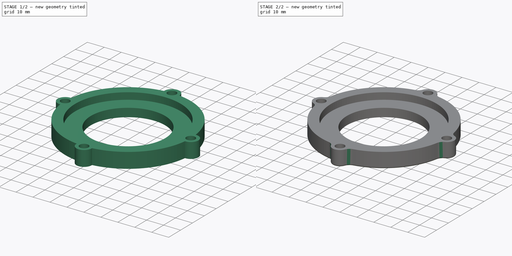
[diagram: build sequence overview — one tinted view per stage of 2, left to right]
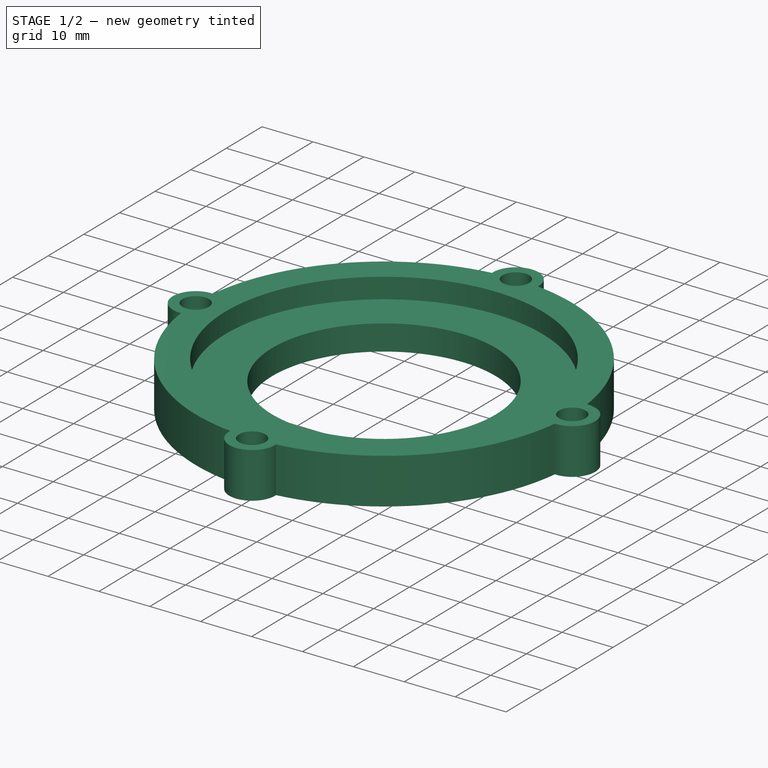
[diagram: stage 1 of 2 — iso view after this stage's code; geometry added in this stage tinted green]
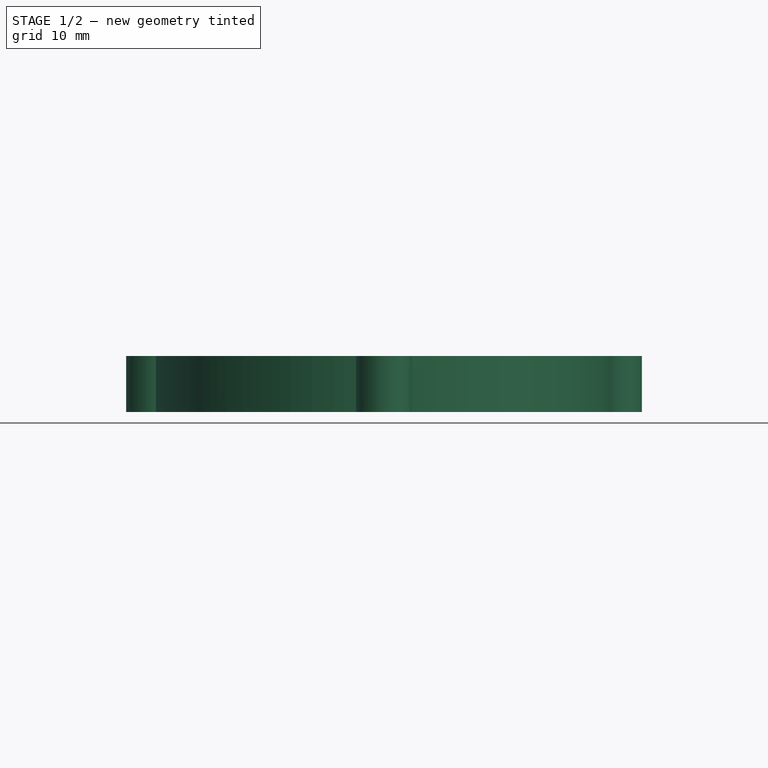
[diagram: stage 1 of 2 — front view after this stage's code; geometry added in this stage tinted green]
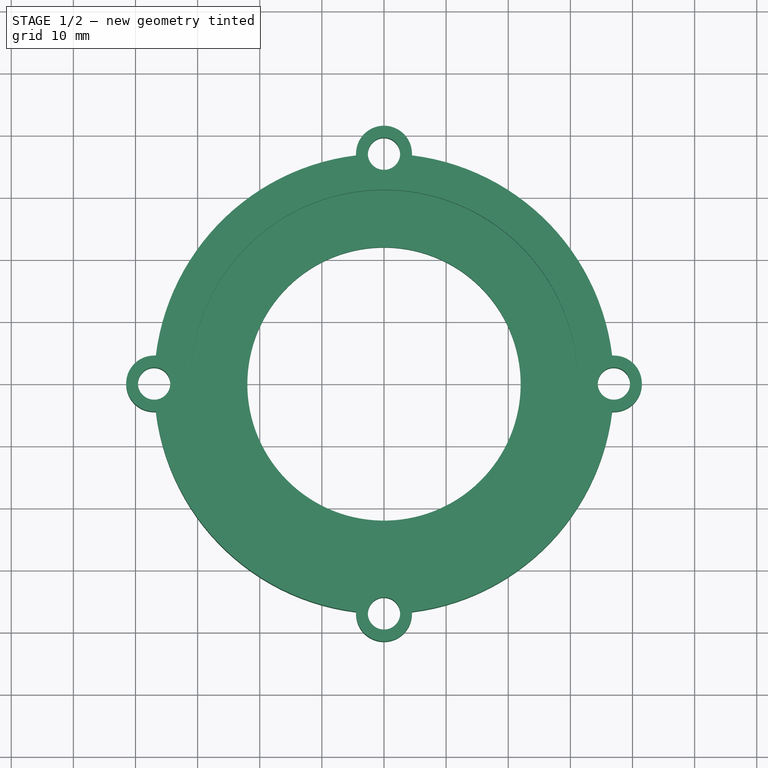
[diagram: stage 1 of 2 — top view after this stage's code; geometry added in this stage tinted green]
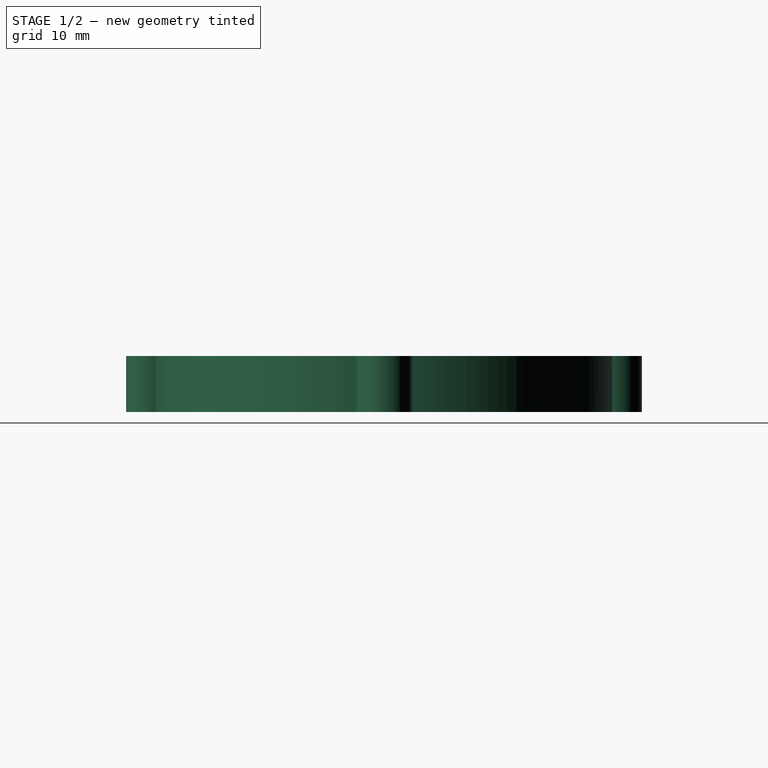
[diagram: stage 1 of 2 — right view after this stage's code; geometry added in this stage tinted green]
FCSTD DOCUMENT  (FreeCAD 0.16R4928 (Git))
Label: ball_bearing_housing
License: All rights reserved
LicenseURL: http://en.wikipedia.org/wiki/All_rights_reserved
objects: Sketcher::SketchObject×2, PartDesign::Fillet×2, PartDesign::Pad×1, PartDesign::Pocket×1
note: 8 computed .brp shape members not serialized (recipe doc carries the construction recipe); baked Part::Feature solids carry a one-line shape summary decoded from their .brp

FEATURE [Sketcher::SketchObject] Sketch
  sketch-geometry (21):
    g0: ArcOfCircle CenterX=0 CenterY=0 CenterZ=0 NormalX=0 NormalY=0 NormalZ=1 Radius=37 StartAngle=1.69272 EndAngle=3.01967
    g1: Circle CenterX=0 CenterY=0 CenterZ=0 NormalX=0 NormalY=0 NormalZ=1 Radius=22
    g2: Circle CenterX=0 CenterY=37 CenterZ=0 NormalX=0 NormalY=0 NormalZ=1 Radius=2.6
    g3: Circle CenterX=0 CenterY=-37 CenterZ=0 NormalX=0 NormalY=0 NormalZ=1 Radius=2.6
    g4: Circle CenterX=-37 CenterY=0 CenterZ=0 NormalX=0 NormalY=0 NormalZ=1 Radius=2.6
    g5: Circle CenterX=37 CenterY=0 CenterZ=0 NormalX=0 NormalY=0 NormalZ=1 Radius=2.6
    g6: ArcOfCircle CenterX=0 CenterY=37 CenterZ=0 NormalX=0 NormalY=0 NormalZ=1 Radius=4.5 StartAngle=6.28319 EndAngle=9.42477
    g7: ArcOfCircle CenterX=-37 CenterY=0 CenterZ=0 NormalX=0 NormalY=0 NormalZ=1 Radius=4.5 StartAngle=1.5708 EndAngle=4.71238
    g8: ArcOfCircle CenterX=0 CenterY=-37 CenterZ=0 NormalX=0 NormalY=0 NormalZ=1 Radius=4.5 StartAngle=3.14159 EndAngle=6.28319
    g9: ArcOfCircle CenterX=37 CenterY=0 CenterZ=0 NormalX=0 NormalY=0 NormalZ=1 Radius=4.5 StartAngle=4.71239 EndAngle=7.85398
    g10: LineSegment StartX=-4.5 StartY=37 StartZ=0 EndX=-4.5 EndY=36.7253 EndZ=0
    g11: LineSegment StartX=4.5 StartY=37 StartZ=0 EndX=4.5 EndY=36.7253 EndZ=0
    g12: LineSegment StartX=-37 StartY=4.5 StartZ=0 EndX=-36.7253 EndY=4.5 EndZ=0
    g13: LineSegment StartX=-37 StartY=-4.5 StartZ=0 EndX=-36.7253 EndY=-4.5 EndZ=0
    g14: ArcOfCircle CenterX=0 CenterY=0 CenterZ=0 NormalX=0 NormalY=0 NormalZ=1 Radius=37 StartAngle=3.26352 EndAngle=4.59047
    g15: LineSegment StartX=-4.5 StartY=-36.7253 StartZ=0 EndX=-4.5 EndY=-37 EndZ=0
    g16: LineSegment StartX=4.5 StartY=-36.7253 StartZ=0 EndX=4.5 EndY=-37 EndZ=0
    g17: ArcOfCircle CenterX=0 CenterY=0 CenterZ=0 NormalX=0 NormalY=0 NormalZ=1 Radius=37 StartAngle=4.83431 EndAngle=6.16126
    g18: LineSegment StartX=36.7253 StartY=4.5 StartZ=0 EndX=37 EndY=4.5 EndZ=0
    g19: LineSegment StartX=36.7253 StartY=-4.5 StartZ=0 EndX=37 EndY=-4.5 EndZ=0
    g20: ArcOfCircle CenterX=0 CenterY=0 CenterZ=0 NormalX=0 NormalY=0 NormalZ=1 Radius=37 StartAngle=0.121923 EndAngle=1.44887
  constraints (68):
    c: Coincident(g0,g-1)
    c: Radius(g0) = 37
    c: Coincident(g1,g-1)
    c: Radius(g1) = 22
    c: PointOnObject(g2,g-2)
    c: Radius(g2) = 2.6
    c: Symmetric(g2,g3,g-1)
    c: PointOnObject(g4,g-1)
    c: Symmetric(g5,g4,g-2)
    c: Equal(g5,g2)
    c: Equal(g2,g4)
    c: Equal(g4,g3)
    c: DistanceY(g-1,g2) = 37
    c: DistanceX(g-1,g4) = -37
    c: Coincident(g6,g2)
    c: Coincident(g8,g3)
    c: Coincident(g9,g5)
    c: Equal(g9,g6)
    c: Equal(g6,g7)
    c: Equal(g7,g8)
    c: Radius(g6) = 4.5
    c: Vertical(g10)
    c: Tangent(g6,g10)
    c: Vertical(g11)
    c: Tangent(g11,g6)
    c: Coincident(g6,g10)
    c: Coincident(g0,g10)
    c: Coincident(g20,g11)
    c: Coincident(g6,g11)
    c: Horizontal(g12)
    c: Coincident(g7,g4)
    c: Horizontal(g13)
    c: PointOnObject(g13,g0)
    c: Equal(g0,g14)
    c: Coincident(g0,g14)
    c: PointOnObject(g14,g13)
    c: Coincident(g7,g13)
    c: Coincident(g7,g12)
    c: Coincident(g0,g12)
    c: Coincident(g12,g7)
    c: Tangent(g12,g7)
    c: Coincident(g7,g13)
    c: Tangent(g13,g7)
    c: Vertical(g15)
    c: Vertical(g16)
    c: PointOnObject(g16,g14)
    c: Equal(g14,g17)
    c: Coincident(g14,g17)
    c: Coincident(g8,g16)
    c: PointOnObject(g17,g16)
    c: Coincident(g8,g15)
    c: Coincident(g14,g15)
    c: Coincident(g15,g8)
    c: Tangent(g15,g8)
    c: Coincident(g16,g8)
    c: Tangent(g16,g8)
    c: Horizontal(g18)
    c: Horizontal(g19)
    c: Coincident(g9,g18)
    c: Equal(g17,g20)
    c: Coincident(g20,g18)
    c: Coincident(g17,g20)
    c: Coincident(g17,g19)
    c: Coincident(g9,g19)
    c: Coincident(g18,g9)
    c: Coincident(g19,g9)
    c: Tangent(g9,g19)
    c: Tangent(g9,g18)
FEATURE [PartDesign::Pad] Pad  label="Ball Bearing Housing 1"
  Length = 9
  Length2 = 100
  Sketch = -> Sketch
  Type = 0
FEATURE [Sketcher::SketchObject] Sketch001
  ExternalGeometry = -> [Pad]
  Placement = pos=(0,0,9) rot=(0,0,1;0rad)
  Support = -> Pad [Face23]
  sketch-geometry (2):
    g0: Circle CenterX=0 CenterY=0 CenterZ=0 NormalX=0 NormalY=0 NormalZ=1 Radius=31.2
    g1: Circle CenterX=0 CenterY=0 CenterZ=0 NormalX=0 NormalY=0 NormalZ=1 Radius=22
  constraints (4):
    c: Coincident(g0,g-1)
    c: Coincident(g1,g-1)
    c: Radius(g0) = 31.2
    c: Equal(g-3,g1)
FEATURE [PartDesign::Pocket] Pocket  label="bearingPocket"
  Length = 4
  Sketch = -> Sketch001
  Type = 0
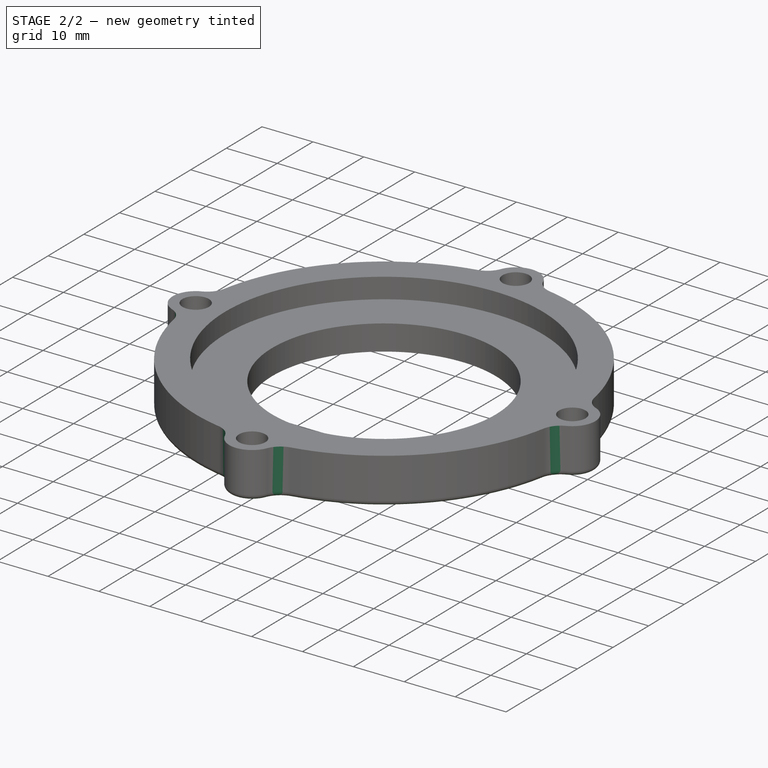
[diagram: stage 2 of 2 — iso view after this stage's code; geometry added in this stage tinted green]
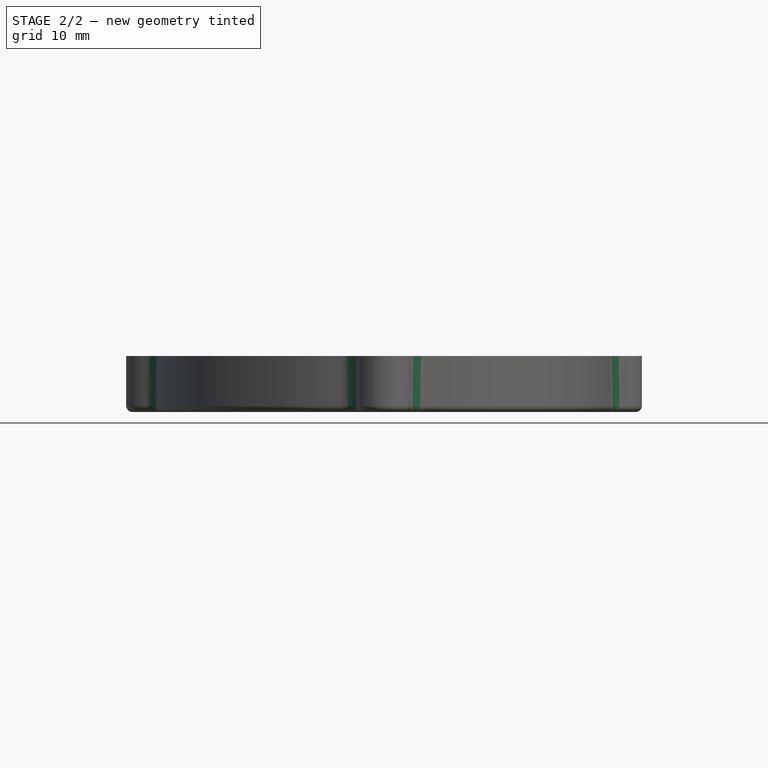
[diagram: stage 2 of 2 — front view after this stage's code; geometry added in this stage tinted green]
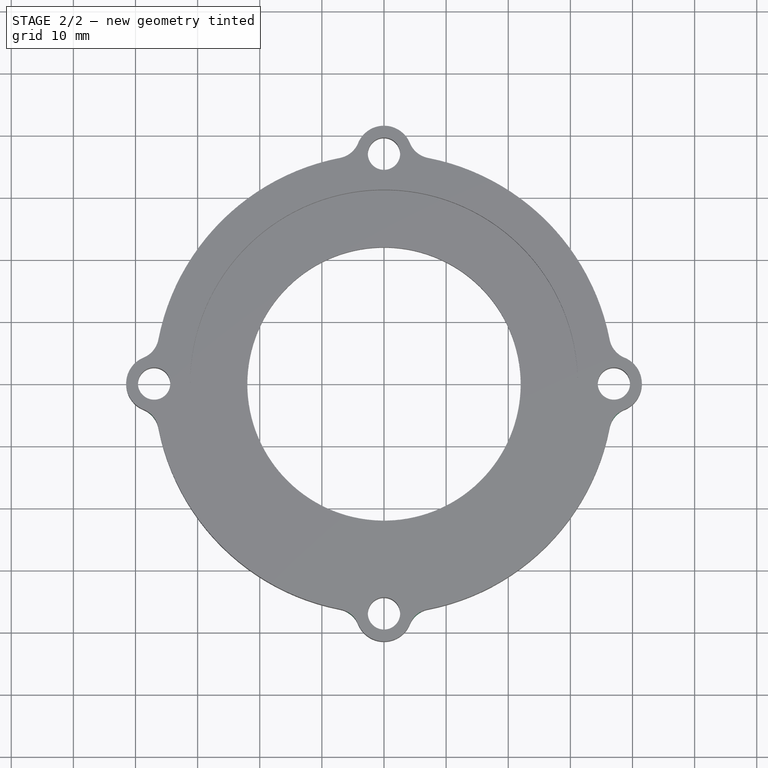
[diagram: stage 2 of 2 — top view after this stage's code; geometry added in this stage tinted green]
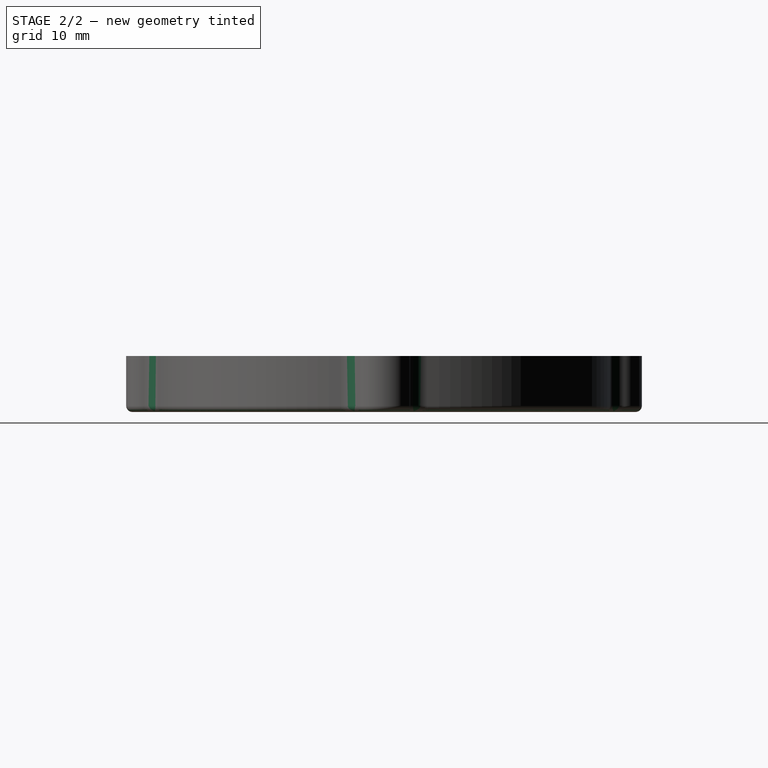
[diagram: stage 2 of 2 — right view after this stage's code; geometry added in this stage tinted green]
FEATURE [PartDesign::Fillet] Fillet
  Base = -> Pocket [Edge48,Edge8,Edge5,Edge47,Edge56,Edge55,Edge52,Edge51]
  Radius = 4
FEATURE [PartDesign::Fillet] Fillet001
  Base = -> Fillet [Edge6,Edge8,Edge1,Edge5,Edge7,Edge9,Edge11,Edge13,Edge15,Edge17,Edge19,Edge18,Edge16,Edge14,Edge12,Edge10]
  Radius = 1
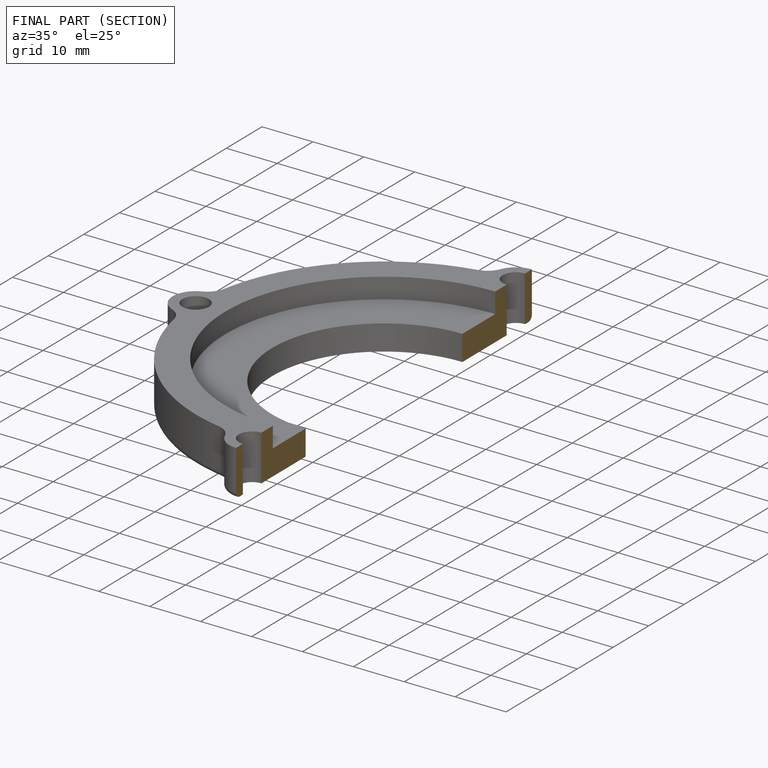
[diagram: finished part — half-section view (interior)]
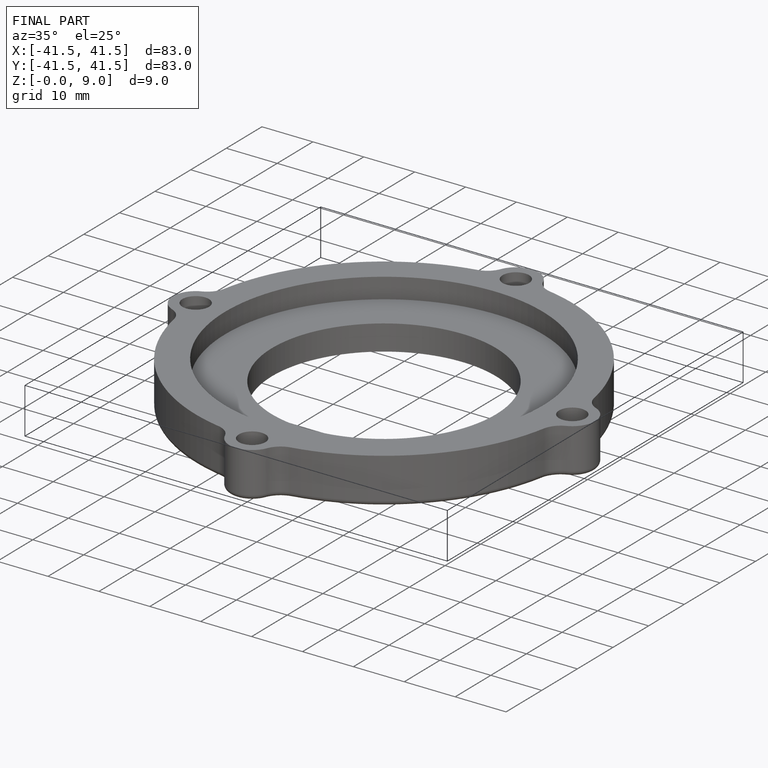
[diagram: finished part — iso view with bounding-box wireframe]
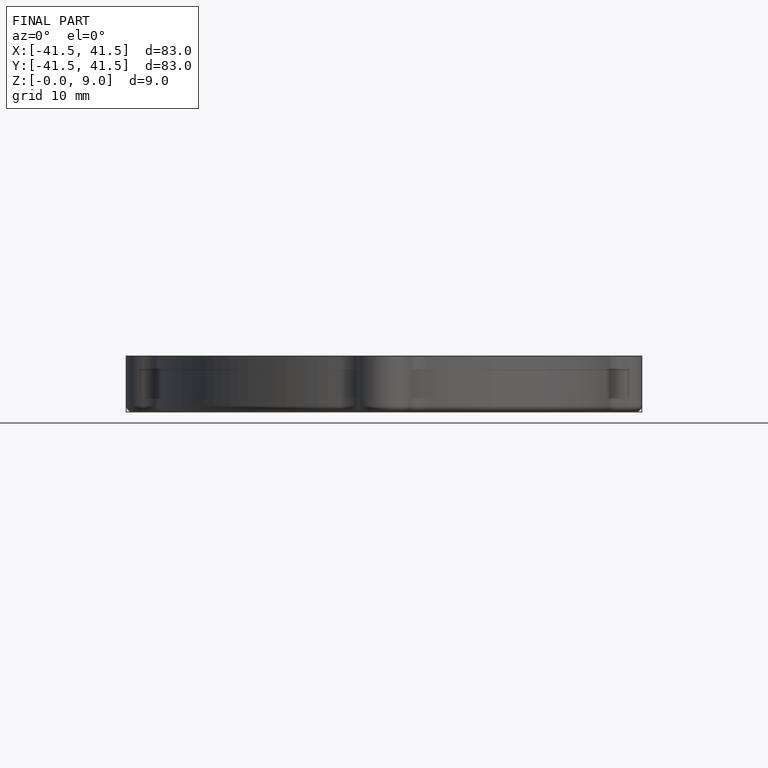
[diagram: finished part — front view with bounding-box wireframe]
